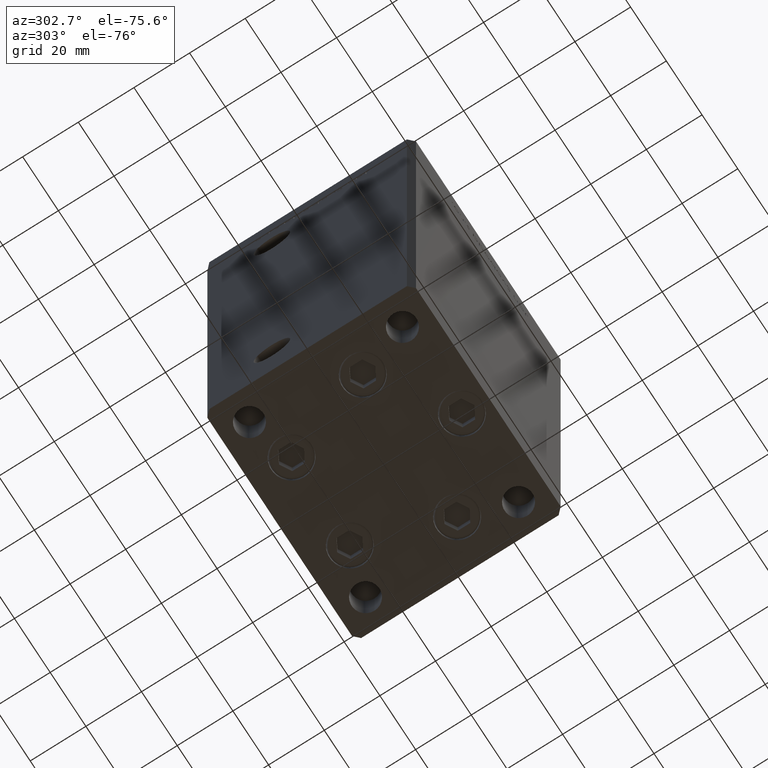
[diagram: clean part render]
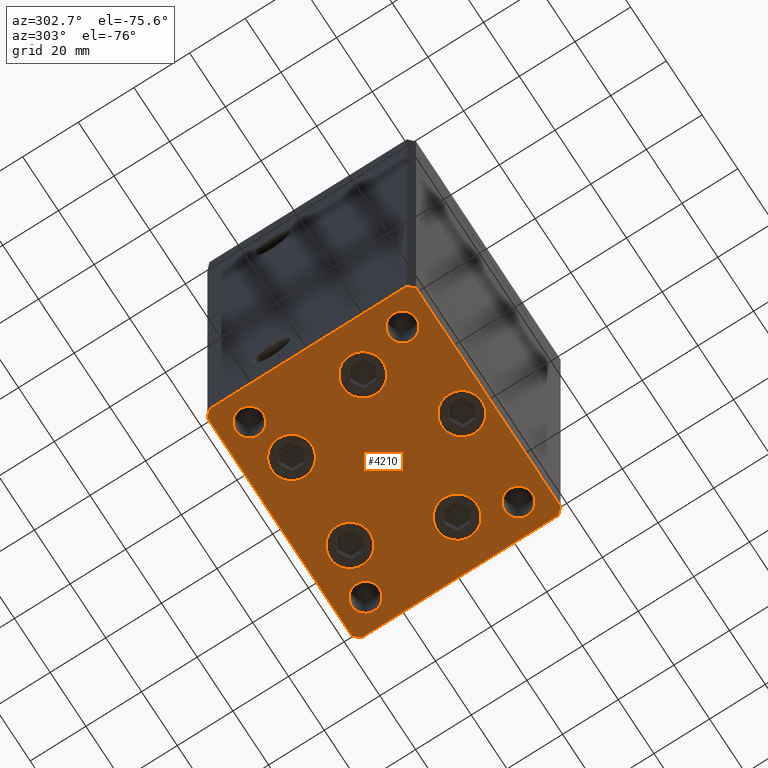
[diagram: same view with one face highlighted and labeled with its STEP entity id]
A machine part, auxiliary view. The second image highlights one B-rep face of the part: STEP entity #4210.
In plain terms, the highlighted planar face has unit normal (0, 0, -1).
Its self-contained STEP definition (entity closure, byte-faithful):
#117 = DIRECTION ( 'NONE',  ( 0.7071067811865474617, 0.7071067811865474617, 0.000000000000000000 ) ) ;
#380 = AXIS2_PLACEMENT_3D ( 'NONE', #10453, #30490, #33932 ) ;
#873 = EDGE_CURVE ( 'NONE', #2279, #16634, #33618, .T. ) ;
#1222 = CARTESIAN_POINT ( 'NONE',  ( 7.250000000000003553, -28.00000000000000000, 0.000000000000000000 ) ) ;
#1484 = FACE_BOUND ( 'NONE', #46884, .T. ) ;
#1717 = VERTEX_POINT ( 'NONE', #40300 ) ;
#1743 = FACE_BOUND ( 'NONE', #34835, .T. ) ;
#1961 = VERTEX_POINT ( 'NONE', #8770 ) ;
#2015 = EDGE_CURVE ( 'NONE', #46771, #3391, #10051, .T. ) ;
#2016 = DIRECTION ( 'NONE',  ( -0.000000000000000000, 0.000000000000000000, 1.000000000000000000 ) ) ;
#2279 = VERTEX_POINT ( 'NONE', #51397 ) ;
#3126 = DIRECTION ( 'NONE',  ( 9.773090005503140331E-17, -1.000000000000000000, 0.000000000000000000 ) ) ;
#3388 = EDGE_CURVE ( 'NONE', #22602, #1961, #20171, .T. ) ;
#3391 = VERTEX_POINT ( 'NONE', #13287 ) ;
#3833 = CIRCLE ( 'NONE', #22337, 7.249999999999999112 ) ;
#4210 = ADVANCED_FACE ( 'NONE', ( #1484, #37887, #5966, #10455, #1743, #33667, #38159, #13619, #25743, #26002 ), #17812, .T. ) ;
#4219 = EDGE_CURVE ( 'NONE', #1961, #22602, #28654, .T. ) ;
#4270 = CARTESIAN_POINT ( 'NONE',  ( -23.57291334290543006, 22.74999999999999645, 0.000000000000000000 ) ) ;
#4526 = ORIENTED_EDGE ( 'NONE', *, *, #34460, .T. ) ;
#4614 = EDGE_CURVE ( 'NONE', #42073, #1717, #13465, .T. ) ;
#4783 = DIRECTION ( 'NONE',  ( 1.000000000000000000, 0.000000000000000000, 0.000000000000000000 ) ) ;
#4799 = DIRECTION ( 'NONE',  ( -0.000000000000000000, 0.000000000000000000, 1.000000000000000000 ) ) ;
#5355 = DIRECTION ( 'NONE',  ( 0.000000000000000000, -0.000000000000000000, -1.000000000000000000 ) ) ;
#5363 = EDGE_LOOP ( 'NONE', ( #24902, #8293 ) ) ;
#5558 = EDGE_CURVE ( 'NONE', #31480, #27296, #51436, .T. ) ;
#5664 = DIRECTION ( 'NONE',  ( 0.000000000000000000, -0.000000000000000000, -1.000000000000000000 ) ) ;
#5880 = ORIENTED_EDGE ( 'NONE', *, *, #13483, .T. ) ;
#5966 = FACE_BOUND ( 'NONE', #30011, .T. ) ;
#6104 = DIRECTION ( 'NONE',  ( 1.000000000000000000, 0.000000000000000000, 0.000000000000000000 ) ) ;
#6341 = DIRECTION ( 'NONE',  ( -0.7071067811865463515, -0.7071067811865487940, 0.000000000000000000 ) ) ;
#6368 = CARTESIAN_POINT ( 'NONE',  ( 16.32291334290542295, 22.75000000000000000, 0.000000000000000000 ) ) ;
#6449 = DIRECTION ( 'NONE',  ( 1.000000000000000000, 0.000000000000000000, 0.000000000000000000 ) ) ;
#7004 = CARTESIAN_POINT ( 'NONE',  ( -16.32291334290543006, 22.74999999999999645, 0.000000000000000000 ) ) ;
#7427 = ORIENTED_EDGE ( 'NONE', *, *, #24736, .T. ) ;
#7651 = CIRCLE ( 'NONE', #40545, 5.000000000000000888 ) ;
#7809 = CIRCLE ( 'NONE', #14546, 7.249999999999999112 ) ;
#8075 = DIRECTION ( 'NONE',  ( 0.000000000000000000, -0.000000000000000000, -1.000000000000000000 ) ) ;
#8214 = EDGE_CURVE ( 'NONE', #41062, #40752, #14461, .T. ) ;
#8252 = VERTEX_POINT ( 'NONE', #14630 ) ;
#8293 = ORIENTED_EDGE ( 'NONE', *, *, #3388, .T. ) ;
#8501 = CARTESIAN_POINT ( 'NONE',  ( 26.39865316429776954, -9.333333333333330373, 0.000000000000000000 ) ) ;
#8734 = CIRCLE ( 'NONE', #23056, 5.000000000000000888 ) ;
#8770 = CARTESIAN_POINT ( 'NONE',  ( -7.249999999999997335, -28.00000000000000000, 0.000000000000000000 ) ) ;
#9358 = DIRECTION ( 'NONE',  ( 0.000000000000000000, -0.000000000000000000, -1.000000000000000000 ) ) ;
#10031 = VERTEX_POINT ( 'NONE', #4270 ) ;
#10051 = CIRCLE ( 'NONE', #15914, 7.249999999999999112 ) ;
#10188 = AXIS2_PLACEMENT_3D ( 'NONE', #7004, #27040, #18595 ) ;
#10191 = DIRECTION ( 'NONE',  ( 1.000000000000000000, 0.000000000000000000, 0.000000000000000000 ) ) ;
#10345 = VERTEX_POINT ( 'NONE', #25742 ) ;
#10453 = CARTESIAN_POINT ( 'NONE',  ( 32.50000000000000000, -27.49999999999999645, 0.000000000000000000 ) ) ;
#10455 = FACE_BOUND ( 'NONE', #5363, .T. ) ;
#10595 = CARTESIAN_POINT ( 'NONE',  ( 32.50000000000000000, -27.49999999999999645, 0.000000000000000000 ) ) ;
#11278 = CARTESIAN_POINT ( 'NONE',  ( 42.49999999999992895, 35.50000000000000000, 0.000000000000000000 ) ) ;
#11374 = AXIS2_PLACEMENT_3D ( 'NONE', #23867, #27316, #15439 ) ;
#11609 = EDGE_CURVE ( 'NONE', #8252, #18850, #31113, .T. ) ;
#12206 = VECTOR ( 'NONE', #32950, 1000.000000000000000 ) ;
#12606 = CIRCLE ( 'NONE', #39550, 4.999999999999997335 ) ;
#12774 = EDGE_LOOP ( 'NONE', ( #22816, #36556, #26627, #35764, #12892, #5880, #17267, #13577 ) ) ;
#12800 = CARTESIAN_POINT ( 'NONE',  ( 42.50000000000000711, -35.50000000000000000, 0.000000000000000000 ) ) ;
#12892 = ORIENTED_EDGE ( 'NONE', *, *, #25920, .T. ) ;
#13284 = VERTEX_POINT ( 'NONE', #50348 ) ;
#13287 = CARTESIAN_POINT ( 'NONE',  ( 23.57291334290542295, 22.75000000000000000, 0.000000000000000000 ) ) ;
#13465 = CIRCLE ( 'NONE', #40452, 5.000000000000000888 ) ;
#13483 = EDGE_CURVE ( 'NONE', #32377, #8252, #43467, .T. ) ;
#13577 = ORIENTED_EDGE ( 'NONE', *, *, #36515, .T. ) ;
#13619 = FACE_BOUND ( 'NONE', #31699, .T. ) ;
#13752 = DIRECTION ( 'NONE',  ( 0.000000000000000000, -0.000000000000000000, -1.000000000000000000 ) ) ;
#13906 = CARTESIAN_POINT ( 'NONE',  ( -37.50000000000000711, -27.49999999999999645, 0.000000000000000000 ) ) ;
#14461 = CIRCLE ( 'NONE', #25340, 7.249999999999999112 ) ;
#14546 = AXIS2_PLACEMENT_3D ( 'NONE', #8501, #27749, #4783 ) ;
#14630 = CARTESIAN_POINT ( 'NONE',  ( -40.50000000000000711, 37.49999999999997868, 0.000000000000000000 ) ) ;
#14705 = LINE ( 'NONE', #11278, #39231 ) ;
#14811 = EDGE_CURVE ( 'NONE', #1717, #42073, #8734, .T. ) ;
#15077 = EDGE_CURVE ( 'NONE', #37438, #41428, #20144, .T. ) ;
#15227 = EDGE_LOOP ( 'NONE', ( #27850, #31249 ) ) ;
#15439 = DIRECTION ( 'NONE',  ( 1.000000000000000000, 0.000000000000000000, 0.000000000000000000 ) ) ;
#15457 = CIRCLE ( 'NONE', #37377, 4.999999999999997335 ) ;
#15914 = AXIS2_PLACEMENT_3D ( 'NONE', #6368, #21906, #6104 ) ;
#15930 = CIRCLE ( 'NONE', #24330, 7.249999999999999112 ) ;
#15956 = DIRECTION ( 'NONE',  ( 1.000000000000000000, 0.000000000000000000, 0.000000000000000000 ) ) ;
#15985 = DIRECTION ( 'NONE',  ( -1.172770800660376741E-15, 1.000000000000000000, 0.000000000000000000 ) ) ;
#16032 = AXIS2_PLACEMENT_3D ( 'NONE', #44137, #4799, #20372 ) ;
#16130 = VERTEX_POINT ( 'NONE', #36331 ) ;
#16634 = VERTEX_POINT ( 'NONE', #16836 ) ;
#16836 = CARTESIAN_POINT ( 'NONE',  ( -33.64865316429776954, -9.333333333333337478, 0.000000000000000000 ) ) ;
#17000 = ORIENTED_EDGE ( 'NONE', *, *, #4614, .T. ) ;
#17267 = ORIENTED_EDGE ( 'NONE', *, *, #11609, .T. ) ;
#17607 = VECTOR ( 'NONE', #3126, 1000.000000000000000 ) ;
#17653 = DIRECTION ( 'NONE',  ( 0.000000000000000000, -0.000000000000000000, -1.000000000000000000 ) ) ;
#17812 = PLANE ( 'NONE',  #32002 ) ;
#18045 = VECTOR ( 'NONE', #15985, 1000.000000000000000 ) ;
#18084 = DIRECTION ( 'NONE',  ( 1.000000000000000000, 0.000000000000000000, 0.000000000000000000 ) ) ;
#18519 = DIRECTION ( 'NONE',  ( 1.000000000000000000, 0.000000000000000000, 0.000000000000000000 ) ) ;
#18595 = DIRECTION ( 'NONE',  ( 1.000000000000000000, 0.000000000000000000, 0.000000000000000000 ) ) ;
#18850 = VERTEX_POINT ( 'NONE', #48126 ) ;
#19692 = EDGE_CURVE ( 'NONE', #16130, #47281, #15457, .T. ) ;
#20144 = LINE ( 'NONE', #28073, #45818 ) ;
#20171 = CIRCLE ( 'NONE', #24387, 7.250000000000000000 ) ;
#20372 = DIRECTION ( 'NONE',  ( 1.000000000000000000, 0.000000000000000000, 0.000000000000000000 ) ) ;
#20537 = ORIENTED_EDGE ( 'NONE', *, *, #19692, .T. ) ;
#20839 = EDGE_LOOP ( 'NONE', ( #20537, #42620 ) ) ;
#21082 = CARTESIAN_POINT ( 'NONE',  ( -42.50000000000000000, -35.50000000000000711, 0.000000000000000000 ) ) ;
#21552 = CARTESIAN_POINT ( 'NONE',  ( -26.39865316429776954, -9.333333333333337478, 0.000000000000000000 ) ) ;
#21808 = EDGE_CURVE ( 'NONE', #29677, #27655, #22847, .T. ) ;
#21906 = DIRECTION ( 'NONE',  ( 0.000000000000000000, -0.000000000000000000, -1.000000000000000000 ) ) ;
#21946 = EDGE_CURVE ( 'NONE', #41428, #13284, #39482, .T. ) ;
#22294 = ORIENTED_EDGE ( 'NONE', *, *, #14811, .T. ) ;
#22337 = AXIS2_PLACEMENT_3D ( 'NONE', #32334, #8075, #51595 ) ;
#22602 = VERTEX_POINT ( 'NONE', #1222 ) ;
#22651 = EDGE_CURVE ( 'NONE', #47281, #16130, #34072, .T. ) ;
#22816 = ORIENTED_EDGE ( 'NONE', *, *, #21808, .T. ) ;
#22847 = LINE ( 'NONE', #50319, #41639 ) ;
#22956 = DIRECTION ( 'NONE',  ( 1.000000000000000000, 0.000000000000000000, 0.000000000000000000 ) ) ;
#22986 = ORIENTED_EDGE ( 'NONE', *, *, #40034, .F. ) ;
#23056 = AXIS2_PLACEMENT_3D ( 'NONE', #34040, #17653, #42213 ) ;
#23059 = ORIENTED_EDGE ( 'NONE', *, *, #2015, .T. ) ;
#23265 = EDGE_CURVE ( 'NONE', #27655, #37438, #33731, .T. ) ;
#23440 = CARTESIAN_POINT ( 'NONE',  ( -40.50000000000000711, 37.49999999999997868, 0.000000000000000000 ) ) ;
#23666 = EDGE_CURVE ( 'NONE', #39151, #44405, #49277, .T. ) ;
#23867 = CARTESIAN_POINT ( 'NONE',  ( -32.50000000000000000, 27.50000000000000355, 0.000000000000000000 ) ) ;
#24330 = AXIS2_PLACEMENT_3D ( 'NONE', #25916, #5355, #18519 ) ;
#24364 = EDGE_LOOP ( 'NONE', ( #22294, #17000 ) ) ;
#24387 = AXIS2_PLACEMENT_3D ( 'NONE', #33339, #24895, #45216 ) ;
#24509 = CIRCLE ( 'NONE', #10188, 7.249999999999999112 ) ;
#24566 = DIRECTION ( 'NONE',  ( 1.000000000000000000, 0.000000000000000000, 0.000000000000000000 ) ) ;
#24736 = EDGE_CURVE ( 'NONE', #10345, #10031, #3833, .T. ) ;
#24895 = DIRECTION ( 'NONE',  ( 0.000000000000000000, -0.000000000000000000, -1.000000000000000000 ) ) ;
#24902 = ORIENTED_EDGE ( 'NONE', *, *, #4219, .T. ) ;
#24977 = CARTESIAN_POINT ( 'NONE',  ( 27.50000000000000355, 27.49999999999999645, 0.000000000000000000 ) ) ;
#25079 = CARTESIAN_POINT ( 'NONE',  ( -32.50000000000000000, -27.49999999999999645, 0.000000000000000000 ) ) ;
#25164 = EDGE_CURVE ( 'NONE', #16634, #2279, #43408, .T. ) ;
#25340 = AXIS2_PLACEMENT_3D ( 'NONE', #45496, #9358, #37591 ) ;
#25514 = ORIENTED_EDGE ( 'NONE', *, *, #25164, .T. ) ;
#25742 = CARTESIAN_POINT ( 'NONE',  ( -9.072913342905431833, 22.74999999999999645, 0.000000000000000000 ) ) ;
#25743 = FACE_OUTER_BOUND ( 'NONE', #12774, .T. ) ;
#25916 = CARTESIAN_POINT ( 'NONE',  ( 16.32291334290542295, 22.75000000000000000, 0.000000000000000000 ) ) ;
#25920 = EDGE_CURVE ( 'NONE', #13284, #32377, #14705, .T. ) ;
#26002 = FACE_BOUND ( 'NONE', #24364, .T. ) ;
#26627 = ORIENTED_EDGE ( 'NONE', *, *, #15077, .T. ) ;
#26661 = EDGE_LOOP ( 'NONE', ( #23059, #4526 ) ) ;
#27016 = ORIENTED_EDGE ( 'NONE', *, *, #23666, .F. ) ;
#27040 = DIRECTION ( 'NONE',  ( 0.000000000000000000, -0.000000000000000000, -1.000000000000000000 ) ) ;
#27109 = DIRECTION ( 'NONE',  ( -1.000000000000000000, -3.426614273534436165E-16, 0.000000000000000000 ) ) ;
#27227 = CARTESIAN_POINT ( 'NONE',  ( 37.50000000000000000, 27.49999999999999645, 0.000000000000000000 ) ) ;
#27296 = VERTEX_POINT ( 'NONE', #27227 ) ;
#27316 = DIRECTION ( 'NONE',  ( -0.000000000000000000, 0.000000000000000000, 1.000000000000000000 ) ) ;
#27632 = CARTESIAN_POINT ( 'NONE',  ( -40.49999999999999289, -37.50000000000002132, 0.000000000000000000 ) ) ;
#27655 = VERTEX_POINT ( 'NONE', #27632 ) ;
#27749 = DIRECTION ( 'NONE',  ( 0.000000000000000000, -0.000000000000000000, -1.000000000000000000 ) ) ;
#27850 = ORIENTED_EDGE ( 'NONE', *, *, #35786, .F. ) ;
#28073 = CARTESIAN_POINT ( 'NONE',  ( 40.50000000000000000, -37.50000000000000711, 0.000000000000000000 ) ) ;
#28383 = CARTESIAN_POINT ( 'NONE',  ( 40.49999999999991473, 37.50000000000000711, 0.000000000000000000 ) ) ;
#28654 = CIRCLE ( 'NONE', #41265, 7.250000000000000000 ) ;
#28980 = ORIENTED_EDGE ( 'NONE', *, *, #8214, .T. ) ;
#29319 = CARTESIAN_POINT ( 'NONE',  ( 9.072913342905424727, 22.75000000000000000, 0.000000000000000000 ) ) ;
#29473 = DIRECTION ( 'NONE',  ( 0.000000000000000000, -0.000000000000000000, -1.000000000000000000 ) ) ;
#29677 = VERTEX_POINT ( 'NONE', #21082 ) ;
#30011 = EDGE_LOOP ( 'NONE', ( #28980, #48264 ) ) ;
#30225 = CARTESIAN_POINT ( 'NONE',  ( 3.429011037612589276E-15, -28.00000000000000000, 0.000000000000000000 ) ) ;
#30306 = LINE ( 'NONE', #42186, #17607 ) ;
#30490 = DIRECTION ( 'NONE',  ( 0.000000000000000000, -0.000000000000000000, -1.000000000000000000 ) ) ;
#31113 = LINE ( 'NONE', #23440, #33051 ) ;
#31249 = ORIENTED_EDGE ( 'NONE', *, *, #5558, .F. ) ;
#31274 = ORIENTED_EDGE ( 'NONE', *, *, #40420, .T. ) ;
#31480 = VERTEX_POINT ( 'NONE', #24977 ) ;
#31699 = EDGE_LOOP ( 'NONE', ( #27016, #22986 ) ) ;
#32002 = AXIS2_PLACEMENT_3D ( 'NONE', #33935, #2016, #18084 ) ;
#32334 = CARTESIAN_POINT ( 'NONE',  ( -16.32291334290543006, 22.74999999999999645, 0.000000000000000000 ) ) ;
#32377 = VERTEX_POINT ( 'NONE', #28383 ) ;
#32503 = DIRECTION ( 'NONE',  ( -0.000000000000000000, 0.000000000000000000, 1.000000000000000000 ) ) ;
#32950 = DIRECTION ( 'NONE',  ( 1.000000000000000000, 1.713307136767217096E-16, 0.000000000000000000 ) ) ;
#33051 = VECTOR ( 'NONE', #6341, 1000.000000000000000 ) ;
#33339 = CARTESIAN_POINT ( 'NONE',  ( 3.429011037612589276E-15, -28.00000000000000000, 0.000000000000000000 ) ) ;
#33618 = CIRCLE ( 'NONE', #48804, 7.249999999999999112 ) ;
#33667 = FACE_BOUND ( 'NONE', #15227, .T. ) ;
#33731 = LINE ( 'NONE', #45871, #12206 ) ;
#33932 = DIRECTION ( 'NONE',  ( 1.000000000000000000, 0.000000000000000000, 0.000000000000000000 ) ) ;
#33935 = CARTESIAN_POINT ( 'NONE',  ( 0.000000000000000000, 0.000000000000000000, 0.000000000000000000 ) ) ;
#34040 = CARTESIAN_POINT ( 'NONE',  ( -32.50000000000000000, -27.49999999999999645, 0.000000000000000000 ) ) ;
#34072 = CIRCLE ( 'NONE', #380, 4.999999999999997335 ) ;
#34460 = EDGE_CURVE ( 'NONE', #3391, #46771, #15930, .T. ) ;
#34514 = CARTESIAN_POINT ( 'NONE',  ( 40.49999999999991473, 37.50000000000000711, 0.000000000000000000 ) ) ;
#34591 = DIRECTION ( 'NONE',  ( 0.000000000000000000, -0.000000000000000000, -1.000000000000000000 ) ) ;
#34835 = EDGE_LOOP ( 'NONE', ( #25514, #48151 ) ) ;
#35764 = ORIENTED_EDGE ( 'NONE', *, *, #21946, .T. ) ;
#35786 = EDGE_CURVE ( 'NONE', #27296, #31480, #12606, .T. ) ;
#36331 = CARTESIAN_POINT ( 'NONE',  ( 37.50000000000000000, -27.49999999999999645, 0.000000000000000000 ) ) ;
#36515 = EDGE_CURVE ( 'NONE', #18850, #29677, #30306, .T. ) ;
#36556 = ORIENTED_EDGE ( 'NONE', *, *, #23265, .T. ) ;
#37377 = AXIS2_PLACEMENT_3D ( 'NONE', #10595, #34591, #22956 ) ;
#37438 = VERTEX_POINT ( 'NONE', #38445 ) ;
#37591 = DIRECTION ( 'NONE',  ( 1.000000000000000000, 0.000000000000000000, 0.000000000000000000 ) ) ;
#37887 = FACE_BOUND ( 'NONE', #26661, .T. ) ;
#38159 = FACE_BOUND ( 'NONE', #20839, .T. ) ;
#38445 = CARTESIAN_POINT ( 'NONE',  ( 40.50000000000000000, -37.50000000000000711, 0.000000000000000000 ) ) ;
#39151 = VERTEX_POINT ( 'NONE', #46896 ) ;
#39231 = VECTOR ( 'NONE', #49594, 1000.000000000000114 ) ;
#39482 = LINE ( 'NONE', #43437, #18045 ) ;
#39550 = AXIS2_PLACEMENT_3D ( 'NONE', #49191, #48163, #15956 ) ;
#40034 = EDGE_CURVE ( 'NONE', #44405, #39151, #7651, .T. ) ;
#40067 = AXIS2_PLACEMENT_3D ( 'NONE', #46814, #5664, #6449 ) ;
#40300 = CARTESIAN_POINT ( 'NONE',  ( -27.50000000000000000, -27.49999999999999645, 0.000000000000000000 ) ) ;
#40420 = EDGE_CURVE ( 'NONE', #10031, #10345, #24509, .T. ) ;
#40452 = AXIS2_PLACEMENT_3D ( 'NONE', #25079, #13752, #50416 ) ;
#40545 = AXIS2_PLACEMENT_3D ( 'NONE', #44635, #32503, #24566 ) ;
#40752 = VERTEX_POINT ( 'NONE', #40758 ) ;
#40758 = CARTESIAN_POINT ( 'NONE',  ( 33.64865316429776954, -9.333333333333328596, 0.000000000000000000 ) ) ;
#41062 = VERTEX_POINT ( 'NONE', #41450 ) ;
#41265 = AXIS2_PLACEMENT_3D ( 'NONE', #30225, #46330, #10191 ) ;
#41428 = VERTEX_POINT ( 'NONE', #12800 ) ;
#41450 = CARTESIAN_POINT ( 'NONE',  ( 19.14865316429777309, -9.333333333333330373, 0.000000000000000000 ) ) ;
#41639 = VECTOR ( 'NONE', #50066, 1000.000000000000000 ) ;
#42073 = VERTEX_POINT ( 'NONE', #13906 ) ;
#42186 = CARTESIAN_POINT ( 'NONE',  ( -42.50000000000000711, 35.49999999999997158, 0.000000000000000000 ) ) ;
#42213 = DIRECTION ( 'NONE',  ( 1.000000000000000000, 0.000000000000000000, 0.000000000000000000 ) ) ;
#42404 = VECTOR ( 'NONE', #27109, 1000.000000000000000 ) ;
#42620 = ORIENTED_EDGE ( 'NONE', *, *, #22651, .T. ) ;
#43408 = CIRCLE ( 'NONE', #40067, 7.249999999999999112 ) ;
#43437 = CARTESIAN_POINT ( 'NONE',  ( 42.50000000000000711, -35.50000000000000000, 0.000000000000000000 ) ) ;
#43467 = LINE ( 'NONE', #34514, #42404 ) ;
#44137 = CARTESIAN_POINT ( 'NONE',  ( 32.50000000000000000, 27.49999999999999645, 0.000000000000000000 ) ) ;
#44405 = VERTEX_POINT ( 'NONE', #47229 ) ;
#44635 = CARTESIAN_POINT ( 'NONE',  ( -32.50000000000000000, 27.50000000000000355, 0.000000000000000000 ) ) ;
#45216 = DIRECTION ( 'NONE',  ( 1.000000000000000000, 0.000000000000000000, 0.000000000000000000 ) ) ;
#45496 = CARTESIAN_POINT ( 'NONE',  ( 26.39865316429776954, -9.333333333333330373, 0.000000000000000000 ) ) ;
#45573 = DIRECTION ( 'NONE',  ( 1.000000000000000000, 0.000000000000000000, 0.000000000000000000 ) ) ;
#45818 = VECTOR ( 'NONE', #117, 1000.000000000000114 ) ;
#45871 = CARTESIAN_POINT ( 'NONE',  ( -40.49999999999999289, -37.50000000000002132, 0.000000000000000000 ) ) ;
#46330 = DIRECTION ( 'NONE',  ( 0.000000000000000000, -0.000000000000000000, -1.000000000000000000 ) ) ;
#46771 = VERTEX_POINT ( 'NONE', #29319 ) ;
#46814 = CARTESIAN_POINT ( 'NONE',  ( -26.39865316429776954, -9.333333333333337478, 0.000000000000000000 ) ) ;
#46884 = EDGE_LOOP ( 'NONE', ( #31274, #7427 ) ) ;
#46896 = CARTESIAN_POINT ( 'NONE',  ( -27.50000000000000000, 27.50000000000000355, 0.000000000000000000 ) ) ;
#47229 = CARTESIAN_POINT ( 'NONE',  ( -37.50000000000000711, 27.50000000000000355, 0.000000000000000000 ) ) ;
#47281 = VERTEX_POINT ( 'NONE', #48518 ) ;
#48126 = CARTESIAN_POINT ( 'NONE',  ( -42.50000000000000711, 35.49999999999997158, 0.000000000000000000 ) ) ;
#48151 = ORIENTED_EDGE ( 'NONE', *, *, #873, .T. ) ;
#48163 = DIRECTION ( 'NONE',  ( -0.000000000000000000, 0.000000000000000000, 1.000000000000000000 ) ) ;
#48264 = ORIENTED_EDGE ( 'NONE', *, *, #50248, .T. ) ;
#48518 = CARTESIAN_POINT ( 'NONE',  ( 27.50000000000000355, -27.49999999999999645, 0.000000000000000000 ) ) ;
#48804 = AXIS2_PLACEMENT_3D ( 'NONE', #21552, #29473, #45573 ) ;
#49191 = CARTESIAN_POINT ( 'NONE',  ( 32.50000000000000000, 27.49999999999999645, 0.000000000000000000 ) ) ;
#49277 = CIRCLE ( 'NONE', #11374, 5.000000000000000888 ) ;
#49594 = DIRECTION ( 'NONE',  ( -0.7071067811865474617, 0.7071067811865474617, 0.000000000000000000 ) ) ;
#50066 = DIRECTION ( 'NONE',  ( 0.7071067811865463515, -0.7071067811865487940, 0.000000000000000000 ) ) ;
#50248 = EDGE_CURVE ( 'NONE', #40752, #41062, #7809, .T. ) ;
#50319 = CARTESIAN_POINT ( 'NONE',  ( -42.50000000000000000, -35.50000000000000711, 0.000000000000000000 ) ) ;
#50348 = CARTESIAN_POINT ( 'NONE',  ( 42.49999999999992895, 35.50000000000000000, 0.000000000000000000 ) ) ;
#50416 = DIRECTION ( 'NONE',  ( 1.000000000000000000, 0.000000000000000000, 0.000000000000000000 ) ) ;
#51397 = CARTESIAN_POINT ( 'NONE',  ( -19.14865316429777309, -9.333333333333335702, 0.000000000000000000 ) ) ;
#51436 = CIRCLE ( 'NONE', #16032, 4.999999999999997335 ) ;
#51595 = DIRECTION ( 'NONE',  ( 1.000000000000000000, 0.000000000000000000, 0.000000000000000000 ) ) ;